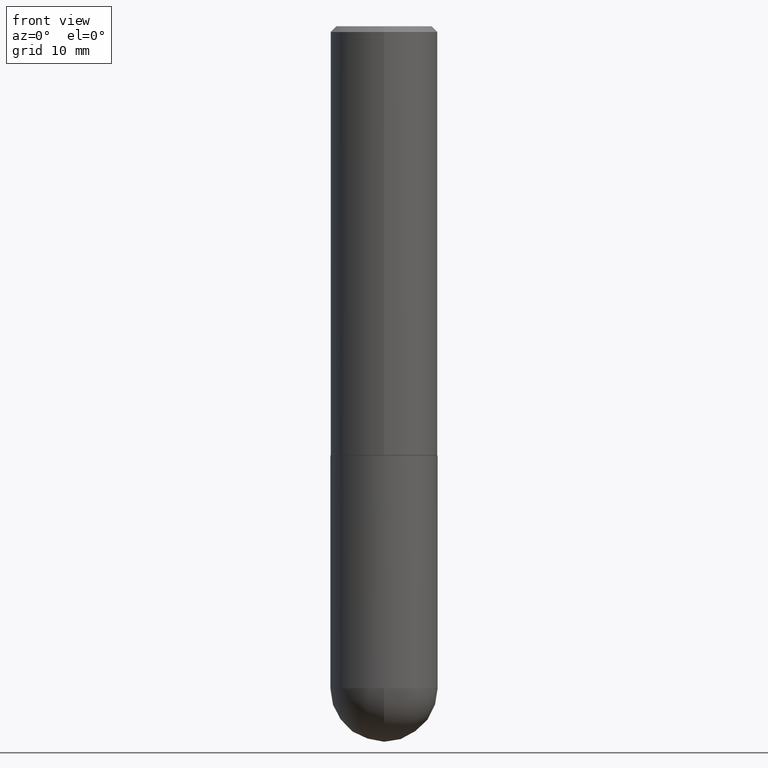
[diagram: clean part render]
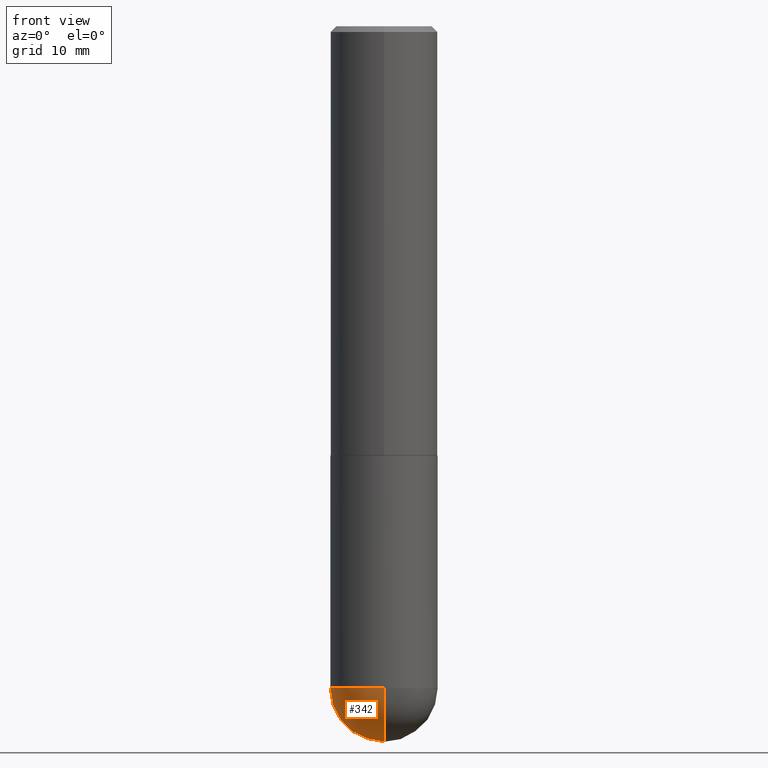
[diagram: same view with one face highlighted and labeled with its STEP entity id]
A machine part, front view. The second image highlights one B-rep face of the part: STEP entity #342.
In plain terms, the highlighted spherical surface has radius 4.7625 mm.
Its self-contained STEP definition (entity closure, byte-faithful):
#7 = CIRCLE ( 'NONE', #353, 0.1875000000000002776 ) ;
#33 = CARTESIAN_POINT ( 'NONE',  ( -1.332267629550133812E-15, -0.1875000000000084377, -2.312499999999999556 ) ) ;
#36 = DIRECTION ( 'NONE',  ( -2.445468806185136597E-29, 3.491481338843145583E-15, 1.000000000000000000 ) ) ;
#40 = CARTESIAN_POINT ( 'NONE',  ( -0.1874999999999999722, -5.323368672619559170E-15, -2.312500000000000000 ) ) ;
#44 = VERTEX_POINT ( 'NONE', #33 ) ;
#55 = ORIENTED_EDGE ( 'NONE', *, *, #157, .F. ) ;
#57 = ORIENTED_EDGE ( 'NONE', *, *, #369, .F. ) ;
#63 = AXIS2_PLACEMENT_3D ( 'NONE', #90, #95, #194 ) ;
#71 = EDGE_LOOP ( 'NONE', ( #140, #314, #57, #55 ) ) ;
#76 = CIRCLE ( 'NONE', #368, 0.1875000000000002776 ) ;
#85 = AXIS2_PLACEMENT_3D ( 'NONE', #280, #219, #338 ) ;
#90 = CARTESIAN_POINT ( 'NONE',  ( 5.324026836389243254E-29, -8.548232964214825368E-15, -2.312500000000000000 ) ) ;
#93 = DIRECTION ( 'NONE',  ( 1.000000000000000000, -6.982962677686263555E-15, 0.000000000000000000 ) ) ;
#95 = DIRECTION ( 'NONE',  ( -1.000000000000000000, 6.982962677686266711E-15, -4.883557194083112340E-29 ) ) ;
#97 = CARTESIAN_POINT ( 'NONE',  ( 5.324026836389243254E-29, -8.548232964214825368E-15, -2.312500000000000000 ) ) ;
#107 = CIRCLE ( 'NONE', #85, 0.1874999999999999722 ) ;
#140 = ORIENTED_EDGE ( 'NONE', *, *, #260, .F. ) ;
#157 = EDGE_CURVE ( 'NONE', #245, #341, #107, .T. ) ;
#160 = AXIS2_PLACEMENT_3D ( 'NONE', #234, #36, #93 ) ;
#162 = DIRECTION ( 'NONE',  ( -1.000000000000000000, 7.105427357601001070E-15, -4.926315508542082329E-29 ) ) ;
#165 = FACE_OUTER_BOUND ( 'NONE', #71, .T. ) ;
#194 = DIRECTION ( 'NONE',  ( 6.982962677686266711E-15, 1.000000000000000000, -2.913971193241876428E-15 ) ) ;
#199 = DIRECTION ( 'NONE',  ( -7.105427357601001070E-15, -1.000000000000000000, 0.000000000000000000 ) ) ;
#200 = CARTESIAN_POINT ( 'NONE',  ( 5.790569421510013204E-29, -9.191404651505909607E-15, -2.500000000000000000 ) ) ;
#219 = DIRECTION ( 'NONE',  ( -2.445468806185136597E-29, 3.491481338843145583E-15, 1.000000000000000000 ) ) ;
#229 = CARTESIAN_POINT ( 'NONE',  ( 5.324026836389243254E-29, -8.548232964214825368E-15, -2.312500000000000000 ) ) ;
#234 = CARTESIAN_POINT ( 'NONE',  ( 5.655146614303128380E-29, -8.074050596074775072E-15, -2.312500000000000000 ) ) ;
#245 = VERTEX_POINT ( 'NONE', #274 ) ;
#260 = EDGE_CURVE ( 'NONE', #264, #245, #76, .T. ) ;
#263 = SPHERICAL_SURFACE ( 'NONE', #63, 0.1875000000000002776 ) ;
#264 = VERTEX_POINT ( 'NONE', #200 ) ;
#274 = CARTESIAN_POINT ( 'NONE',  ( 1.309305502066230623E-15, 0.1874999999999918399, -2.312500000000000444 ) ) ;
#279 = CIRCLE ( 'NONE', #160, 0.1874999999999999722 ) ;
#280 = CARTESIAN_POINT ( 'NONE',  ( 5.655146614303128380E-29, -8.074050596074775072E-15, -2.312500000000000000 ) ) ;
#314 = ORIENTED_EDGE ( 'NONE', *, *, #388, .T. ) ;
#338 = DIRECTION ( 'NONE',  ( 1.000000000000000000, -6.982962677686263555E-15, 0.000000000000000000 ) ) ;
#341 = VERTEX_POINT ( 'NONE', #40 ) ;
#342 = ADVANCED_FACE ( 'NONE', ( #165 ), #263, .T. ) ;
#348 = DIRECTION ( 'NONE',  ( 6.982962677686266711E-15, 1.000000000000000000, 0.000000000000000000 ) ) ;
#353 = AXIS2_PLACEMENT_3D ( 'NONE', #97, #162, #199 ) ;
#368 = AXIS2_PLACEMENT_3D ( 'NONE', #229, #379, #348 ) ;
#369 = EDGE_CURVE ( 'NONE', #341, #44, #279, .T. ) ;
#379 = DIRECTION ( 'NONE',  ( 1.000000000000000000, -6.982962677686265922E-15, 4.883557194083112340E-29 ) ) ;
#388 = EDGE_CURVE ( 'NONE', #264, #44, #7, .T. ) ;